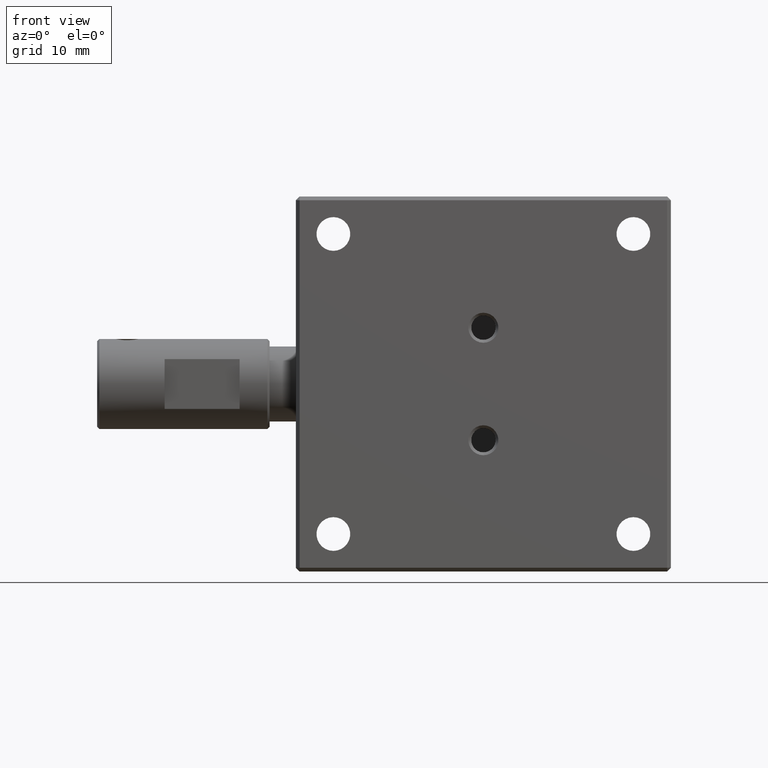
[diagram: clean part render]
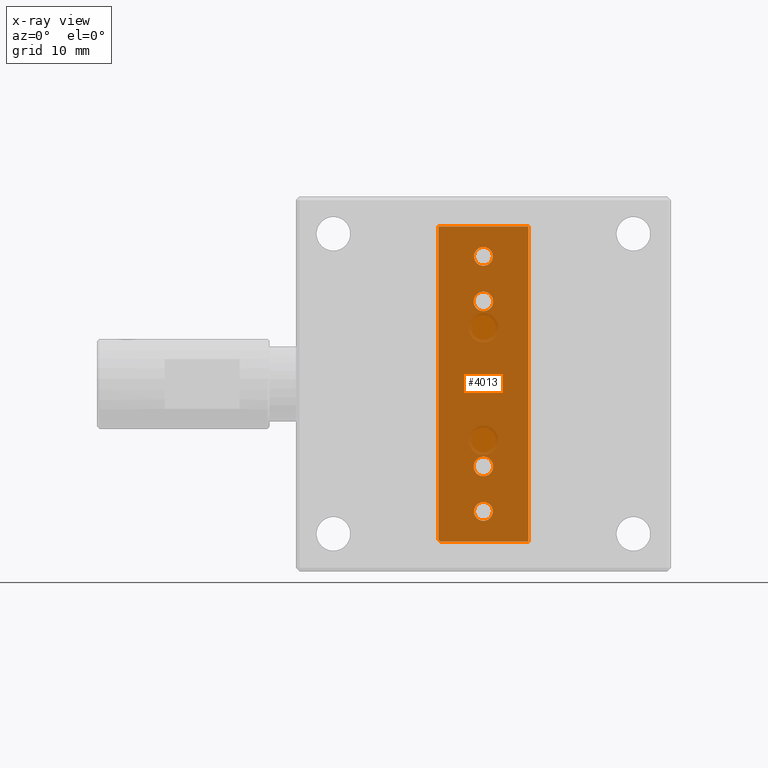
[diagram: x-ray — body ghosted, one internal face saturated and labeled with its STEP entity id]
A machine part, front view, then the same camera in x-ray: the body is ghosted and one INTERNAL B-rep face — a face not visible from any outside direction — is saturated and labeled: STEP entity #4013.
In plain terms, the highlighted planar face has unit normal (0, -1, 0).
Its self-contained STEP definition (entity closure, byte-faithful):
#43 = DIRECTION ( 'NONE',  ( 0.000000000000000000, -0.000000000000000000, -1.000000000000000000 ) ) ;
#46 = CARTESIAN_POINT ( 'NONE',  ( 0.000000000000000000, 19.00000000000000000, 18.25000000002319211 ) ) ;
#60 = CARTESIAN_POINT ( 'NONE',  ( 6.000000000000000000, 19.00000000000000000, -21.00000000000000000 ) ) ;
#127 = EDGE_CURVE ( 'NONE', #1346, #5506, #2687, .T. ) ;
#299 = CARTESIAN_POINT ( 'NONE',  ( 6.000000000000000000, 19.00000000000000000, 21.00000000000000000 ) ) ;
#304 = AXIS2_PLACEMENT_3D ( 'NONE', #1175, #3232, #7550 ) ;
#389 = CARTESIAN_POINT ( 'NONE',  ( -5.799999999999999822, 19.00000000000000000, -21.00000000000000000 ) ) ;
#517 = CARTESIAN_POINT ( 'NONE',  ( 0.000000000000000000, 18.99999999994315658, -17.00000000000000000 ) ) ;
#777 = EDGE_LOOP ( 'NONE', ( #6164 ) ) ;
#955 = AXIS2_PLACEMENT_3D ( 'NONE', #6849, #2555, #6939 ) ;
#1106 = VERTEX_POINT ( 'NONE', #46 ) ;
#1175 = CARTESIAN_POINT ( 'NONE',  ( 0.000000000000000000, 19.00000000000000000, 11.00000000000000000 ) ) ;
#1346 = VERTEX_POINT ( 'NONE', #5376 ) ;
#1398 = EDGE_LOOP ( 'NONE', ( #5046 ) ) ;
#1438 = ORIENTED_EDGE ( 'NONE', *, *, #5669, .F. ) ;
#1470 = LINE ( 'NONE', #7801, #3323 ) ;
#1525 = CARTESIAN_POINT ( 'NONE',  ( 0.000000000000000000, 19.00000000000000000, 12.30000000000000071 ) ) ;
#1531 = EDGE_CURVE ( 'NONE', #7015, #7015, #8059, .T. ) ;
#1594 = AXIS2_PLACEMENT_3D ( 'NONE', #4954, #4875, #1760 ) ;
#1683 = EDGE_LOOP ( 'NONE', ( #2731 ) ) ;
#1701 = CIRCLE ( 'NONE', #4115, 1.250000000023190783 ) ;
#1711 = FACE_BOUND ( 'NONE', #777, .T. ) ;
#1760 = DIRECTION ( 'NONE',  ( 0.000000000000000000, 0.000000000000000000, 1.000000000000000000 ) ) ;
#1917 = DIRECTION ( 'NONE',  ( -0.000000000000000000, 0.000000000000000000, 1.000000000000000000 ) ) ;
#1968 = ORIENTED_EDGE ( 'NONE', *, *, #3454, .F. ) ;
#2024 = VERTEX_POINT ( 'NONE', #60 ) ;
#2063 = DIRECTION ( 'NONE',  ( -1.000000000000000000, -0.000000000000000000, -0.000000000000000000 ) ) ;
#2224 = LINE ( 'NONE', #5844, #6671 ) ;
#2296 = ORIENTED_EDGE ( 'NONE', *, *, #6238, .F. ) ;
#2403 = VERTEX_POINT ( 'NONE', #389 ) ;
#2455 = VECTOR ( 'NONE', #3614, 1000.000000000000114 ) ;
#2478 = EDGE_CURVE ( 'NONE', #6540, #6540, #2840, .T. ) ;
#2555 = DIRECTION ( 'NONE',  ( 0.000000000000000000, -1.000000000000000000, 0.000000000000000000 ) ) ;
#2687 = LINE ( 'NONE', #5964, #3894 ) ;
#2731 = ORIENTED_EDGE ( 'NONE', *, *, #3659, .F. ) ;
#2840 = CIRCLE ( 'NONE', #6341, 1.249999999974535481 ) ;
#2876 = VERTEX_POINT ( 'NONE', #1525 ) ;
#2931 = FACE_OUTER_BOUND ( 'NONE', #6886, .T. ) ;
#3083 = DIRECTION ( 'NONE',  ( -0.000000000000000000, 1.000000000000000000, 0.000000000000000000 ) ) ;
#3231 = ORIENTED_EDGE ( 'NONE', *, *, #5507, .F. ) ;
#3232 = DIRECTION ( 'NONE',  ( 0.000000000000000000, 1.000000000000000000, 0.000000000000000000 ) ) ;
#3316 = VECTOR ( 'NONE', #1917, 1000.000000000000000 ) ;
#3323 = VECTOR ( 'NONE', #7080, 1000.000000000000000 ) ;
#3340 = DIRECTION ( 'NONE',  ( -0.000000000000000000, 1.000000000000000000, 0.000000000000000000 ) ) ;
#3454 = EDGE_CURVE ( 'NONE', #5506, #2403, #6863, .T. ) ;
#3525 = FACE_BOUND ( 'NONE', #1398, .T. ) ;
#3614 = DIRECTION ( 'NONE',  ( 0.7071067811865489050, -0.000000000000000000, -0.7071067811865460184 ) ) ;
#3659 = EDGE_CURVE ( 'NONE', #2876, #2876, #7029, .T. ) ;
#3728 = LINE ( 'NONE', #6297, #3316 ) ;
#3894 = VECTOR ( 'NONE', #43, 1000.000000000000000 ) ;
#4013 = ADVANCED_FACE ( 'NONE', ( #2931, #3525, #5492, #7451, #1711 ), #6170, .F. ) ;
#4084 = CARTESIAN_POINT ( 'NONE',  ( 0.000000000000000000, 19.00000000000000000, 17.00000000000000000 ) ) ;
#4115 = AXIS2_PLACEMENT_3D ( 'NONE', #4084, #3340, #7939 ) ;
#4875 = DIRECTION ( 'NONE',  ( 0.000000000000000000, 1.000000000000000000, 0.000000000000000000 ) ) ;
#4954 = CARTESIAN_POINT ( 'NONE',  ( 0.000000000000000000, 19.00000000000000000, -11.00000000000000000 ) ) ;
#5046 = ORIENTED_EDGE ( 'NONE', *, *, #5814, .F. ) ;
#5228 = ORIENTED_EDGE ( 'NONE', *, *, #127, .F. ) ;
#5376 = CARTESIAN_POINT ( 'NONE',  ( -6.000000000000000000, 19.00000000000000000, 21.00000000000000000 ) ) ;
#5492 = FACE_BOUND ( 'NONE', #6308, .T. ) ;
#5506 = VERTEX_POINT ( 'NONE', #7328 ) ;
#5507 = EDGE_CURVE ( 'NONE', #6326, #1346, #2224, .T. ) ;
#5644 = DIRECTION ( 'NONE',  ( 0.000000000000000000, 0.000000000000000000, 1.000000000000000000 ) ) ;
#5669 = EDGE_CURVE ( 'NONE', #2024, #6326, #3728, .T. ) ;
#5814 = EDGE_CURVE ( 'NONE', #1106, #1106, #1701, .T. ) ;
#5844 = CARTESIAN_POINT ( 'NONE',  ( 6.000000000000000000, 19.00000000000000000, 21.00000000000000000 ) ) ;
#5902 = ORIENTED_EDGE ( 'NONE', *, *, #2478, .F. ) ;
#5964 = CARTESIAN_POINT ( 'NONE',  ( -6.000000000000000000, 19.00000000000000000, 21.00000000000000000 ) ) ;
#6164 = ORIENTED_EDGE ( 'NONE', *, *, #1531, .F. ) ;
#6170 = PLANE ( 'NONE',  #955 ) ;
#6238 = EDGE_CURVE ( 'NONE', #2403, #2024, #1470, .T. ) ;
#6297 = CARTESIAN_POINT ( 'NONE',  ( 6.000000000000000000, 19.00000000000000000, 21.00000000000000000 ) ) ;
#6308 = EDGE_LOOP ( 'NONE', ( #5902 ) ) ;
#6326 = VERTEX_POINT ( 'NONE', #299 ) ;
#6341 = AXIS2_PLACEMENT_3D ( 'NONE', #517, #3083, #5644 ) ;
#6458 = CARTESIAN_POINT ( 'NONE',  ( 0.000000000000000000, 18.99999999994315658, -15.75000000002546585 ) ) ;
#6540 = VERTEX_POINT ( 'NONE', #6458 ) ;
#6671 = VECTOR ( 'NONE', #2063, 1000.000000000000000 ) ;
#6699 = CARTESIAN_POINT ( 'NONE',  ( -6.000000000000000000, 19.00000000000000000, -20.80000000000000426 ) ) ;
#6849 = CARTESIAN_POINT ( 'NONE',  ( 6.000000000000000000, 19.00000000000000000, 21.00000000000000000 ) ) ;
#6863 = LINE ( 'NONE', #6699, #2455 ) ;
#6886 = EDGE_LOOP ( 'NONE', ( #1968, #5228, #3231, #1438, #2296 ) ) ;
#6939 = DIRECTION ( 'NONE',  ( 0.000000000000000000, -0.000000000000000000, -1.000000000000000000 ) ) ;
#7015 = VERTEX_POINT ( 'NONE', #7055 ) ;
#7029 = CIRCLE ( 'NONE', #304, 1.300000000000000711 ) ;
#7055 = CARTESIAN_POINT ( 'NONE',  ( 0.000000000000000000, 19.00000000000000000, -9.699999999999999289 ) ) ;
#7080 = DIRECTION ( 'NONE',  ( 1.000000000000000000, 0.000000000000000000, 0.000000000000000000 ) ) ;
#7328 = CARTESIAN_POINT ( 'NONE',  ( -6.000000000000000000, 19.00000000000000000, -20.80000000000000426 ) ) ;
#7451 = FACE_BOUND ( 'NONE', #1683, .T. ) ;
#7550 = DIRECTION ( 'NONE',  ( 0.000000000000000000, 0.000000000000000000, 1.000000000000000000 ) ) ;
#7801 = CARTESIAN_POINT ( 'NONE',  ( 6.000000000000000000, 19.00000000000000000, -21.00000000000000000 ) ) ;
#7939 = DIRECTION ( 'NONE',  ( 0.000000000000000000, 0.000000000000000000, 1.000000000000000000 ) ) ;
#8059 = CIRCLE ( 'NONE', #1594, 1.300000000000000711 ) ;